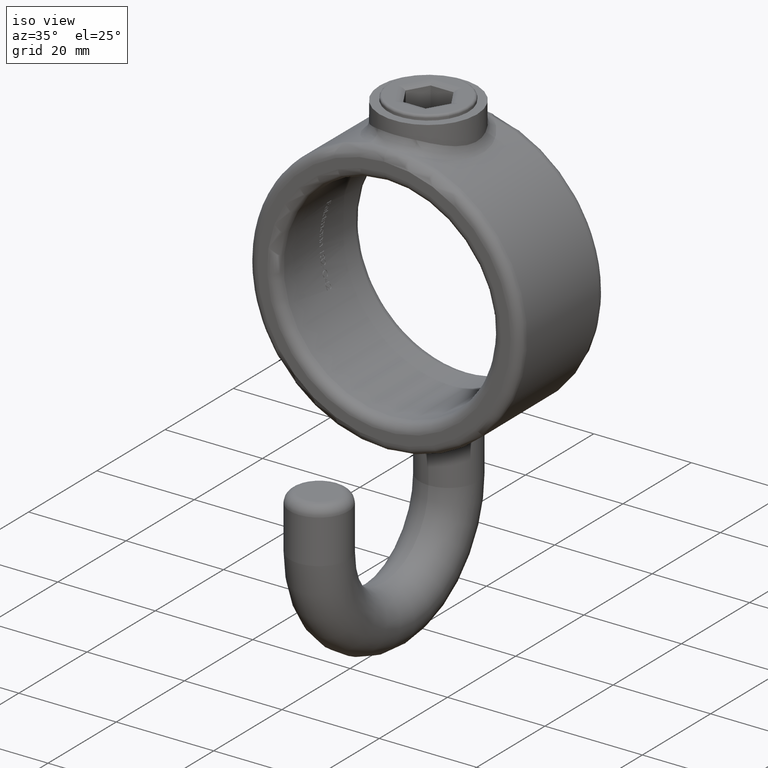
[diagram: clean part render]
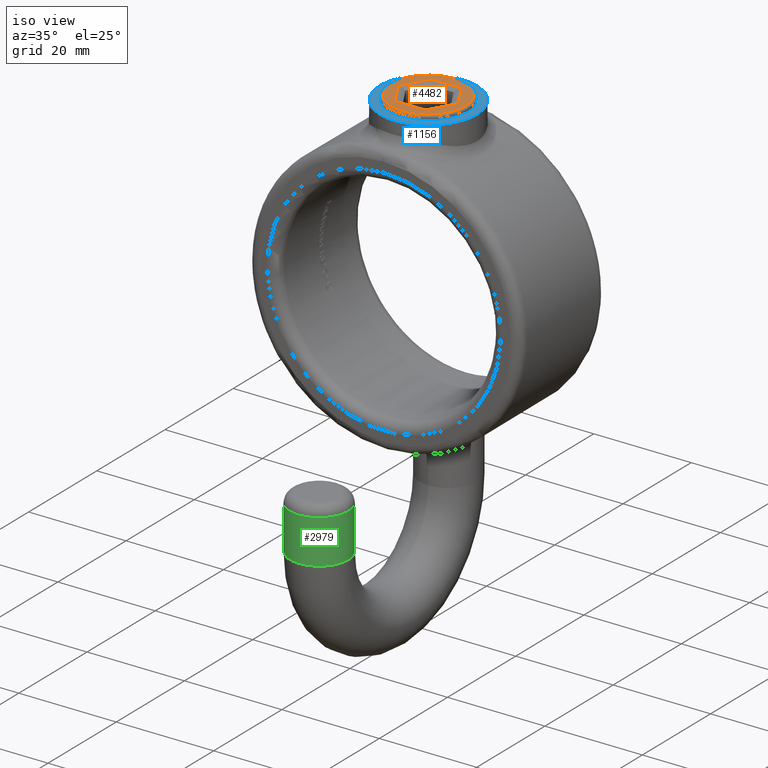
[diagram: same view with three faces highlighted in distinct colors, each labeled with its STEP entity id]
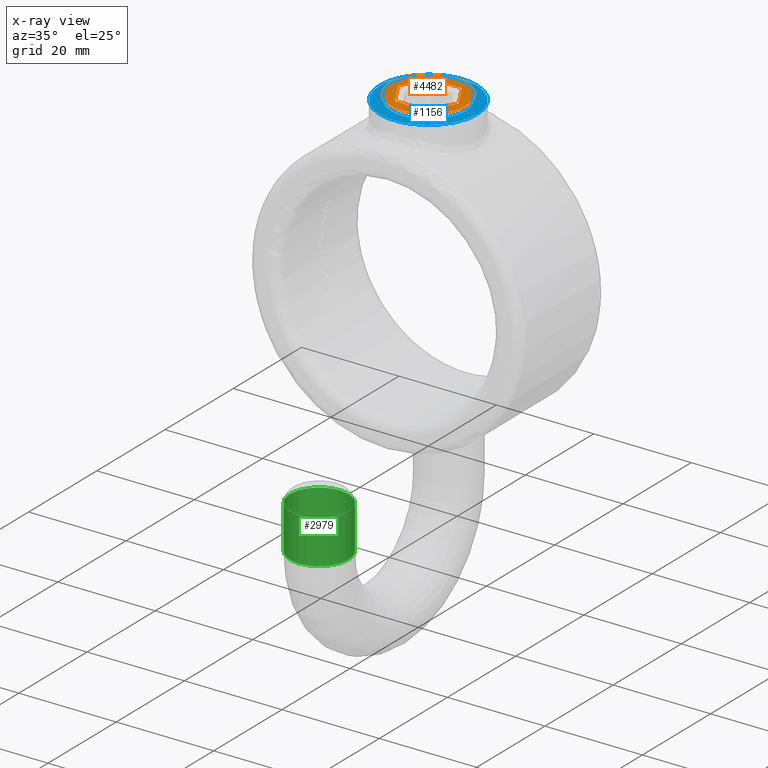
[diagram: x-ray of the same camera — body ghosted, the three highlighted faces saturated]
A machine part, iso view with three faces highlighted in distinct colors.
The next image is the same camera in x-ray (body ghosted, the three faces saturated) — at least one of them is partly hidden behind the body in this view.
Their STEP definitions:

[orange] entity #4482 — the highlighted planar face has unit normal (0, 0, 1).
#227 = EDGE_LOOP ( 'NONE', ( #6895 ) ) ;
#815 = DIRECTION ( 'NONE',  ( -0.4999999999999998335, 0.000000000000000000, -0.8660254037844387076 ) ) ;
#1289 = CARTESIAN_POINT ( 'NONE',  ( -3.101262615825973068, 13.00000000000000000, -5.371544418224547535 ) ) ;
#1391 = LINE ( 'NONE', #4371, #11987 ) ;
#1699 = VECTOR ( 'NONE', #3215, 1000.000000000000000 ) ;
#1804 = CARTESIAN_POINT ( 'NONE',  ( 3.101262615825978397, 13.00000000000000000, 5.371544418224548423 ) ) ;
#2065 = VECTOR ( 'NONE', #7435, 1000.000000000000227 ) ;
#2232 = CARTESIAN_POINT ( 'NONE',  ( -2.626175134594815219, 13.00000000000000000, 5.371544418224547535 ) ) ;
#2303 = ORIENTED_EDGE ( 'NONE', *, *, #6278, .T. ) ;
#2333 = VECTOR ( 'NONE', #2512, 1000.000000000000000 ) ;
#2512 = DIRECTION ( 'NONE',  ( -1.000000000000000000, 0.000000000000000000, -1.855319225643643478E-16 ) ) ;
#2598 = EDGE_CURVE ( 'NONE', #9902, #4771, #3954, .T. ) ;
#2610 = CARTESIAN_POINT ( 'NONE',  ( 3.338806356441557099, 13.00000000000000000, 4.960106590458402742 ) ) ;
#2638 = EDGE_CURVE ( 'NONE', #11625, #9902, #1391, .T. ) ;
#2734 = EDGE_CURVE ( 'NONE', #10206, #11625, #12296, .T. ) ;
#3023 = CARTESIAN_POINT ( 'NONE',  ( 0.000000000000000000, 13.00000000000000000, 0.000000000000000000 ) ) ;
#3215 = DIRECTION ( 'NONE',  ( 1.000000000000000000, -0.000000000000000000, 0.000000000000000000 ) ) ;
#3330 = FACE_BOUND ( 'NONE', #5532, .T. ) ;
#3662 = CARTESIAN_POINT ( 'NONE',  ( -5.964981491036366990, 13.00000000000000000, 0.4114378277661476790 ) ) ;
#3753 = CARTESIAN_POINT ( 'NONE',  ( 0.000000000000000000, 13.00000000000000000, 0.000000000000000000 ) ) ;
#3756 = VERTEX_POINT ( 'NONE', #1804 ) ;
#3788 = CARTESIAN_POINT ( 'NONE',  ( -3.101262615825973956, 13.00000000000000000, 5.371544418224547535 ) ) ;
#3954 = LINE ( 'NONE', #10903, #1699 ) ;
#4134 = CARTESIAN_POINT ( 'NONE',  ( 5.964981491036367878, 13.00000000000000000, -0.4114378277661481231 ) ) ;
#4371 = CARTESIAN_POINT ( 'NONE',  ( -3.338806356441553547, 13.00000000000000000, -4.960106590458400966 ) ) ;
#4431 = PLANE ( 'NONE',  #12106 ) ;
#4482 = ADVANCED_FACE ( 'NONE', ( #3330, #6923 ), #4431, .T. ) ;
#4526 = CARTESIAN_POINT ( 'NONE',  ( 0.000000000000000000, 13.00000000000000000, 7.750000000000000000 ) ) ;
#4592 = DIRECTION ( 'NONE',  ( 0.000000000000000000, 1.000000000000000000, 0.000000000000000000 ) ) ;
#4771 = VERTEX_POINT ( 'NONE', #6841 ) ;
#4961 = CARTESIAN_POINT ( 'NONE',  ( -6.202525231651947024, 13.00000000000000000, 8.673617379884035472E-16 ) ) ;
#5016 = DIRECTION ( 'NONE',  ( 0.000000000000000000, 0.000000000000000000, 1.000000000000000000 ) ) ;
#5532 = EDGE_LOOP ( 'NONE', ( #10602, #11749, #11953, #7004, #10436, #2303 ) ) ;
#6090 = LINE ( 'NONE', #4134, #8303 ) ;
#6278 = EDGE_CURVE ( 'NONE', #3756, #10206, #9360, .T. ) ;
#6510 = VERTEX_POINT ( 'NONE', #10130 ) ;
#6635 = DIRECTION ( 'NONE',  ( 0.000000000000000000, -0.000000000000000000, 1.000000000000000000 ) ) ;
#6841 = CARTESIAN_POINT ( 'NONE',  ( 3.101262615825974844, 13.00000000000000000, -5.371544418224547535 ) ) ;
#6895 = ORIENTED_EDGE ( 'NONE', *, *, #7127, .T. ) ;
#6923 = FACE_OUTER_BOUND ( 'NONE', #227, .T. ) ;
#7004 = ORIENTED_EDGE ( 'NONE', *, *, #10455, .T. ) ;
#7127 = EDGE_CURVE ( 'NONE', #10840, #10840, #9406, .T. ) ;
#7135 = LINE ( 'NONE', #2610, #2065 ) ;
#7435 = DIRECTION ( 'NONE',  ( -0.4999999999999992228, 0.000000000000000000, 0.8660254037844390407 ) ) ;
#8303 = VECTOR ( 'NONE', #9124, 1000.000000000000000 ) ;
#9124 = DIRECTION ( 'NONE',  ( 0.4999999999999998890, -0.000000000000000000, 0.8660254037844387076 ) ) ;
#9360 = LINE ( 'NONE', #2232, #2333 ) ;
#9406 = CIRCLE ( 'NONE', #12125, 7.750000000000000000 ) ;
#9787 = VECTOR ( 'NONE', #815, 1000.000000000000114 ) ;
#9902 = VERTEX_POINT ( 'NONE', #1289 ) ;
#10130 = CARTESIAN_POINT ( 'NONE',  ( 6.202525231651947912, 13.00000000000000000, -1.409462824231155764E-15 ) ) ;
#10206 = VERTEX_POINT ( 'NONE', #3788 ) ;
#10436 = ORIENTED_EDGE ( 'NONE', *, *, #11163, .T. ) ;
#10455 = EDGE_CURVE ( 'NONE', #4771, #6510, #6090, .T. ) ;
#10594 = DIRECTION ( 'NONE',  ( 0.000000000000000000, 1.000000000000000000, 0.000000000000000000 ) ) ;
#10602 = ORIENTED_EDGE ( 'NONE', *, *, #2734, .T. ) ;
#10840 = VERTEX_POINT ( 'NONE', #4526 ) ;
#10903 = CARTESIAN_POINT ( 'NONE',  ( 2.626175134594813443, 13.00000000000000000, -5.371544418224547535 ) ) ;
#11021 = DIRECTION ( 'NONE',  ( 0.4999999999999997780, 0.000000000000000000, -0.8660254037844387076 ) ) ;
#11163 = EDGE_CURVE ( 'NONE', #6510, #3756, #7135, .T. ) ;
#11625 = VERTEX_POINT ( 'NONE', #4961 ) ;
#11749 = ORIENTED_EDGE ( 'NONE', *, *, #2638, .T. ) ;
#11953 = ORIENTED_EDGE ( 'NONE', *, *, #2598, .T. ) ;
#11987 = VECTOR ( 'NONE', #11021, 1000.000000000000227 ) ;
#12106 = AXIS2_PLACEMENT_3D ( 'NONE', #3753, #4592, #6635 ) ;
#12125 = AXIS2_PLACEMENT_3D ( 'NONE', #3023, #10594, #5016 ) ;
#12296 = LINE ( 'NONE', #3662, #9787 ) ;

[blue] entity #1156 — the highlighted planar face has unit normal (0, 0, 1).
#1156 = ADVANCED_FACE ( 'NONE', ( #4265, #10960 ), #4181, .T. ) ;
#1952 = DIRECTION ( 'NONE',  ( 0.000000000000000000, 0.000000000000000000, 1.000000000000000000 ) ) ;
#1988 = EDGE_LOOP ( 'NONE', ( #3592 ) ) ;
#1997 = CARTESIAN_POINT ( 'NONE',  ( 0.000000000000000000, 13.00000000000000000, 32.50000000000000000 ) ) ;
#2354 = EDGE_CURVE ( 'NONE', #10104, #10104, #10216, .T. ) ;
#2608 = CARTESIAN_POINT ( 'NONE',  ( 7.624999999999987566, 13.00000000000000000, 32.50000000000000000 ) ) ;
#3307 = CARTESIAN_POINT ( 'NONE',  ( 0.000000000000000000, 13.00000000000000000, 32.50000000000000000 ) ) ;
#3484 = CARTESIAN_POINT ( 'NONE',  ( 10.00000000000000178, 13.00000000000000000, 32.50000000000000000 ) ) ;
#3592 = ORIENTED_EDGE ( 'NONE', *, *, #2354, .F. ) ;
#3845 = VERTEX_POINT ( 'NONE', #3484 ) ;
#4181 = PLANE ( 'NONE',  #10349 ) ;
#4265 = FACE_BOUND ( 'NONE', #1988, .T. ) ;
#4266 = DIRECTION ( 'NONE',  ( 0.000000000000000000, 0.000000000000000000, 1.000000000000000000 ) ) ;
#4539 = EDGE_CURVE ( 'NONE', #3845, #3845, #12114, .T. ) ;
#5925 = DIRECTION ( 'NONE',  ( 1.000000000000000000, 0.000000000000000000, 0.000000000000000000 ) ) ;
#6214 = AXIS2_PLACEMENT_3D ( 'NONE', #6808, #9611, #5925 ) ;
#6808 = CARTESIAN_POINT ( 'NONE',  ( 0.000000000000000000, 13.00000000000000000, 32.50000000000000000 ) ) ;
#8026 = EDGE_LOOP ( 'NONE', ( #11232 ) ) ;
#8512 = AXIS2_PLACEMENT_3D ( 'NONE', #1997, #1952, #8668 ) ;
#8668 = DIRECTION ( 'NONE',  ( 1.000000000000000000, 0.000000000000000000, 0.000000000000000000 ) ) ;
#9611 = DIRECTION ( 'NONE',  ( -0.000000000000000000, -0.000000000000000000, 1.000000000000000000 ) ) ;
#10104 = VERTEX_POINT ( 'NONE', #2608 ) ;
#10216 = CIRCLE ( 'NONE', #6214, 7.624999999999987566 ) ;
#10349 = AXIS2_PLACEMENT_3D ( 'NONE', #3307, #4266, #10498 ) ;
#10498 = DIRECTION ( 'NONE',  ( 1.000000000000000000, 0.000000000000000000, -0.000000000000000000 ) ) ;
#10960 = FACE_OUTER_BOUND ( 'NONE', #8026, .T. ) ;
#11232 = ORIENTED_EDGE ( 'NONE', *, *, #4539, .T. ) ;
#12114 = CIRCLE ( 'NONE', #8512, 10.00000000000000178 ) ;

[green] entity #2979 — the highlighted cylindrical surface (bore or boss wall) has radius 6 mm, axis along (0, -0, 1).
#2485 = AXIS2_PLACEMENT_3D ( 'NONE', #11230, #5523, #4827 ) ;
#2606 = CYLINDRICAL_SURFACE ( 'NONE', #12185, 6.000000000000001776 ) ;
#2855 = ORIENTED_EDGE ( 'NONE', *, *, #8954, .F. ) ;
#2883 = EDGE_LOOP ( 'NONE', ( #2855 ) ) ;
#2905 = FACE_OUTER_BOUND ( 'NONE', #2883, .T. ) ;
#2979 = ADVANCED_FACE ( 'NONE', ( #4402, #2905 ), #2606, .T. ) ;
#2995 = DIRECTION ( 'NONE',  ( -0.000000000000000000, -6.308085367188388269E-16, 1.000000000000000000 ) ) ;
#4278 = CARTESIAN_POINT ( 'NONE',  ( 0.000000000000000000, -18.99999999999999645, -39.00000000000000711 ) ) ;
#4402 = FACE_OUTER_BOUND ( 'NONE', #11023, .T. ) ;
#4827 = DIRECTION ( 'NONE',  ( 0.000000000000000000, 1.000000000000000000, 5.782411586589355667E-16 ) ) ;
#5048 = AXIS2_PLACEMENT_3D ( 'NONE', #4278, #7232, #8024 ) ;
#5094 = ORIENTED_EDGE ( 'NONE', *, *, #8748, .T. ) ;
#5523 = DIRECTION ( 'NONE',  ( 0.000000000000000000, 3.154042683594196107E-16, -1.000000000000000000 ) ) ;
#5948 = CARTESIAN_POINT ( 'NONE',  ( 0.000000000000000000, -18.99999999999999645, -39.00000000000000711 ) ) ;
#7232 = DIRECTION ( 'NONE',  ( 0.000000000000000000, 3.154042683594196107E-16, -1.000000000000000000 ) ) ;
#7564 = VERTEX_POINT ( 'NONE', #10146 ) ;
#7869 = VERTEX_POINT ( 'NONE', #9368 ) ;
#8024 = DIRECTION ( 'NONE',  ( 0.000000000000000000, 1.000000000000000000, 0.000000000000000000 ) ) ;
#8748 = EDGE_CURVE ( 'NONE', #7869, #7869, #12044, .T. ) ;
#8954 = EDGE_CURVE ( 'NONE', #7564, #7564, #9839, .T. ) ;
#9368 = CARTESIAN_POINT ( 'NONE',  ( 0.000000000000000000, -13.00000000000000178, -29.99999999999999645 ) ) ;
#9833 = DIRECTION ( 'NONE',  ( 0.000000000000000000, -1.000000000000000000, -1.156482317317871133E-15 ) ) ;
#9839 = CIRCLE ( 'NONE', #5048, 6.000000000000001776 ) ;
#10146 = CARTESIAN_POINT ( 'NONE',  ( 0.000000000000000000, -12.99999999999999467, -39.00000000000000711 ) ) ;
#11023 = EDGE_LOOP ( 'NONE', ( #5094 ) ) ;
#11230 = CARTESIAN_POINT ( 'NONE',  ( 0.000000000000000000, -19.00000000000000355, -30.00000000000000000 ) ) ;
#12044 = CIRCLE ( 'NONE', #2485, 6.000000000000001776 ) ;
#12185 = AXIS2_PLACEMENT_3D ( 'NONE', #5948, #2995, #9833 ) ;